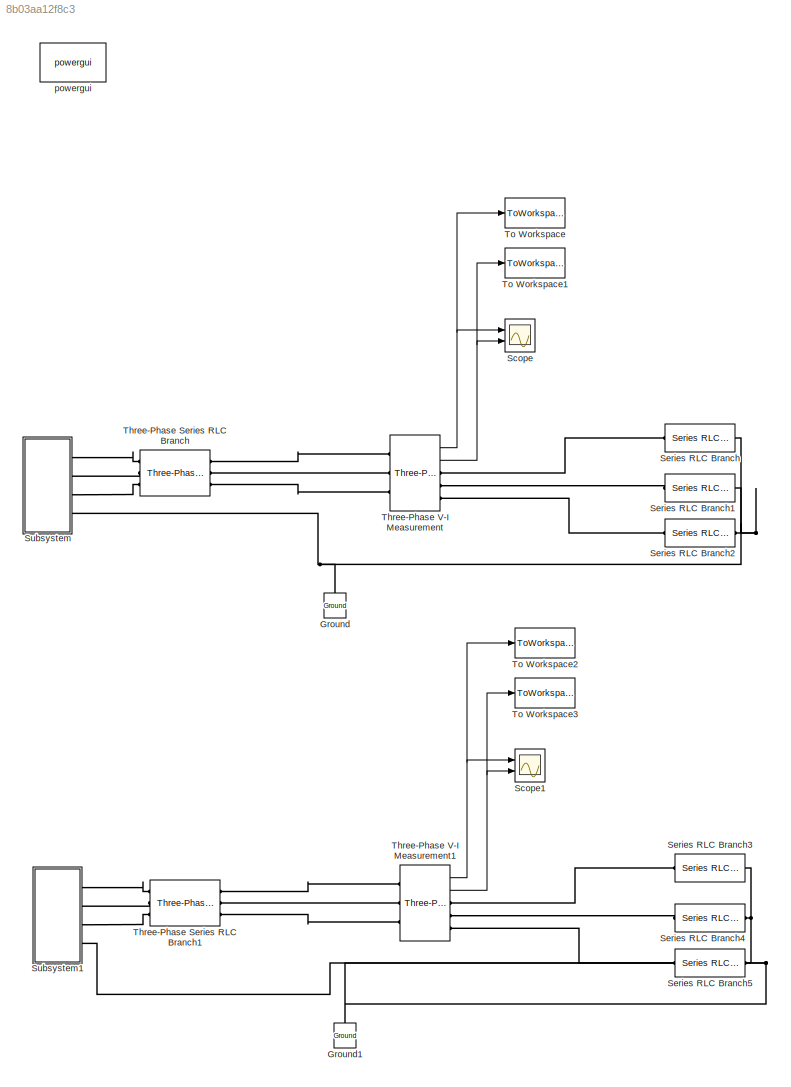
MODEL slx_8b03aa12f8c3
KIND model
BLOCK [Reference] Ground  REF=powerlib/Elements/Ground
  LConnTagsString = a
  Ports = [0, 0, 0, 0, 0, 1]
  SourceBlock = powerlib/Elements/Ground
  SourceType = Ground
BLOCK [Reference] Ground1  REF=powerlib/Elements/Ground
  LConnTagsString = a
  Ports = [0, 0, 0, 0, 0, 1]
  SourceBlock = powerlib/Elements/Ground
  SourceType = Ground
BLOCK [Scope] Scope
  Floating = off
  LimitDataPoints = off
  NumInputPorts = 2
  Ports = [2]
  ShowLegends = off
  YMax = 250~17.5
  YMin = -250~-17.5
  ZoomMode = xonly
BLOCK [Scope] Scope1
  Floating = off
  LimitDataPoints = off
  NumInputPorts = 2
  Ports = [2]
  SaveName = ScopeData1
  ShowLegends = off
  YMax = 250~17.5
  YMin = -250~-17.5
  ZoomMode = xonly
BLOCK [Reference] Series RLC Branch  REF=powerlib/Elements/Series RLC Branch
  BranchType = C
  Capacitance = 10e-6
  Inductance = 1e-3
  InitialCurrent = 0
  InitialVoltage = 0
  LConnTagsString = __new0
  Measurements = None
  Ports = [0, 0, 0, 0, 0, 1, 1]
  RConnTagsString = __new0
  Resistance = 1
  SetiL0 = off
  Setx0 = off
  SourceBlock = powerlib/Elements/Series RLC Branch
  SourceType = Series RLC Branch
BLOCK [Reference] Series RLC Branch1  REF=powerlib/Elements/Series RLC Branch
  BranchType = C
  Capacitance = 10e-6
  Inductance = 1e-3
  InitialCurrent = 0
  InitialVoltage = 0
  LConnTagsString = __new0
  Measurements = None
  Ports = [0, 0, 0, 0, 0, 1, 1]
  RConnTagsString = __new0
  Resistance = 1
  SetiL0 = off
  Setx0 = off
  SourceBlock = powerlib/Elements/Series RLC Branch
  SourceType = Series RLC Branch
BLOCK [Reference] Series RLC Branch2  REF=powerlib/Elements/Series RLC Branch
  BranchType = C
  Capacitance = 10e-6
  Inductance = 1e-3
  InitialCurrent = 0
  InitialVoltage = 0
  LConnTagsString = __new0
  Measurements = None
  Ports = [0, 0, 0, 0, 0, 1, 1]
  RConnTagsString = __new0
  Resistance = 1
  SetiL0 = off
  Setx0 = off
  SourceBlock = powerlib/Elements/Series RLC Branch
  SourceType = Series RLC Branch
BLOCK [Reference] Series RLC Branch3  REF=powerlib/Elements/Series RLC Branch
  BranchType = C
  Capacitance = 30e-6
  Inductance = 1e-3
  InitialCurrent = 0
  InitialVoltage = 0
  LConnTagsString = __new0
  Measurements = None
  Ports = [0, 0, 0, 0, 0, 1, 1]
  RConnTagsString = __new0
  Resistance = 1
  SetiL0 = off
  Setx0 = off
  SourceBlock = powerlib/Elements/Series RLC Branch
  SourceType = Series RLC Branch
BLOCK [Reference] Series RLC Branch4  REF=powerlib/Elements/Series RLC Branch
  BranchType = C
  Capacitance = 10e-6
  Inductance = 1e-3
  InitialCurrent = 0
  InitialVoltage = 0
  LConnTagsString = __new0
  Measurements = None
  Ports = [0, 0, 0, 0, 0, 1, 1]
  RConnTagsString = __new0
  Resistance = 1
  SetiL0 = off
  Setx0 = off
  SourceBlock = powerlib/Elements/Series RLC Branch
  SourceType = Series RLC Branch
BLOCK [Reference] Series RLC Branch5  REF=powerlib/Elements/Series RLC Branch
  BranchType = C
  Capacitance = 10e-6
  Inductance = 1e-3
  InitialCurrent = 0
  InitialVoltage = 0
  LConnTagsString = __new0
  Measurements = None
  Ports = [0, 0, 0, 0, 0, 1, 1]
  RConnTagsString = __new0
  Resistance = 1
  SetiL0 = off
  Setx0 = off
  SourceBlock = powerlib/Elements/Series RLC Branch
  SourceType = Series RLC Branch
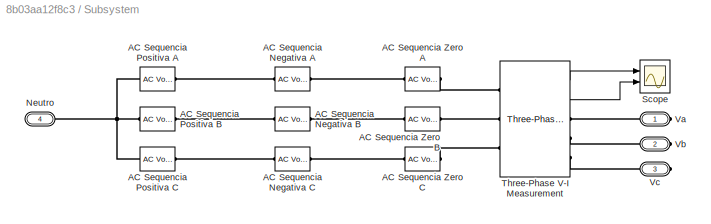
BLOCK [SubSystem] Subsystem
  Ports = [0, 0, 0, 0, 0, 0, 4]
  RequestExecContextInheritance = off
BLOCK [Reference] Subsystem/AC Sequencia Negativa A  REF=powerlib/Electrical
Sources/AC Voltage Source
  Amplitude = Vn
  Frequency = f
  Measurements = None
  Phase = 0+phin
  Ports = [0, 0, 0, 0, 0, 1, 1]
  SampleTime = 0
  SourceBlock = powerlib/Electrical\nSources/AC Voltage Source
  SourceType = AC Voltage Source
BLOCK [Reference] Subsystem/AC Sequencia Negativa B  REF=powerlib/Electrical
Sources/AC Voltage Source
  Amplitude = Vn
  Frequency = f
  Measurements = None
  Phase = 120+phin
  Ports = [0, 0, 0, 0, 0, 1, 1]
  SampleTime = 0
  SourceBlock = powerlib/Electrical\nSources/AC Voltage Source
  SourceType = AC Voltage Source
BLOCK [Reference] Subsystem/AC Sequencia Negativa C  REF=powerlib/Electrical
Sources/AC Voltage Source
  Amplitude = Vn
  Frequency = f
  Measurements = None
  Phase = -120+phin
  Ports = [0, 0, 0, 0, 0, 1, 1]
  SampleTime = 0
  SourceBlock = powerlib/Electrical\nSources/AC Voltage Source
  SourceType = AC Voltage Source
BLOCK [Reference] Subsystem/AC Sequencia Positiva A  REF=powerlib/Electrical
Sources/AC Voltage Source
  Amplitude = Vp
  Frequency = f
  Measurements = None
  Phase = 0
  Ports = [0, 0, 0, 0, 0, 1, 1]
  SampleTime = 0
  SourceBlock = powerlib/Electrical\nSources/AC Voltage Source
  SourceType = AC Voltage Source
BLOCK [Reference] Subsystem/AC Sequencia Positiva B  REF=powerlib/Electrical
Sources/AC Voltage Source
  Amplitude = Vp
  Frequency = f
  Measurements = None
  Phase = -120
  Ports = [0, 0, 0, 0, 0, 1, 1]
  SampleTime = 0
  SourceBlock = powerlib/Electrical\nSources/AC Voltage Source
  SourceType = AC Voltage Source
BLOCK [Reference] Subsystem/AC Sequencia Positiva C  REF=powerlib/Electrical
Sources/AC Voltage Source
  Amplitude = Vp
  Frequency = f
  Measurements = None
  Phase = +120
  Ports = [0, 0, 0, 0, 0, 1, 1]
  SampleTime = 0
  SourceBlock = powerlib/Electrical\nSources/AC Voltage Source
  SourceType = AC Voltage Source
BLOCK [Reference] Subsystem/AC Sequencia Zero A  REF=powerlib/Electrical
Sources/AC Voltage Source
  Amplitude = Vz
  Frequency = f
  Measurements = None
  Phase = 0+phi0
  Ports = [0, 0, 0, 0, 0, 1, 1]
  SampleTime = 0
  SourceBlock = powerlib/Electrical\nSources/AC Voltage Source
  SourceType = AC Voltage Source
BLOCK [Reference] Subsystem/AC Sequencia Zero B  REF=powerlib/Electrical
Sources/AC Voltage Source
  Amplitude = Vz
  Frequency = f
  Measurements = None
  Phase = 0+phi0
  Ports = [0, 0, 0, 0, 0, 1, 1]
  SampleTime = 0
  SourceBlock = powerlib/Electrical\nSources/AC Voltage Source
  SourceType = AC Voltage Source
BLOCK [Reference] Subsystem/AC Sequencia Zero C  REF=powerlib/Electrical
Sources/AC Voltage Source
  Amplitude = Vz
  Frequency = f
  Measurements = None
  Phase = 0+phi0
  Ports = [0, 0, 0, 0, 0, 1, 1]
  SampleTime = 0
  SourceBlock = powerlib/Electrical\nSources/AC Voltage Source
  SourceType = AC Voltage Source
BLOCK [PMIOPort] Subsystem/Neutro
  Port = 4
  Side = Right
BLOCK [Scope] Subsystem/Scope
  Floating = off
  LimitDataPoints = off
  NumInputPorts = 2
  Ports = [2]
  SaveName = ScopeData14
  ShowLegends = off
  YMax = 6~0.8
  YMin = -6~-0.8
  ZoomMode = xonly
BLOCK [Reference] Subsystem/Three-Phase V-I Measurement  REF=powerlib/Measurements/Three-Phase
V-I Measurement
  CurrentMeasurement = yes
  Ipu = off
  LabelI = Iabc
  LabelV = Vabc
  OutputType = Complex
  PSBequivalent = 0
  Pbase = 100e6
  PhasorSimulation = off
  Ports = [0, 2, 0, 0, 0, 3, 3]
  SetLabelI = off
  SetLabelV = off
  SourceBlock = powerlib/Measurements/Three-Phase\nV-I Measurement
  SourceType = Three-Phase VI Measurement
  Vbase = 500e3
  VoltageMeasurement = phase-to-ground
  Vpu = off
  VpuLL = off
BLOCK [PMIOPort] Subsystem/Va
  Port = 1
  Side = Right
BLOCK [PMIOPort] Subsystem/Vb
  Port = 2
  Side = Right
BLOCK [PMIOPort] Subsystem/Vc
  Port = 3
  Side = Right
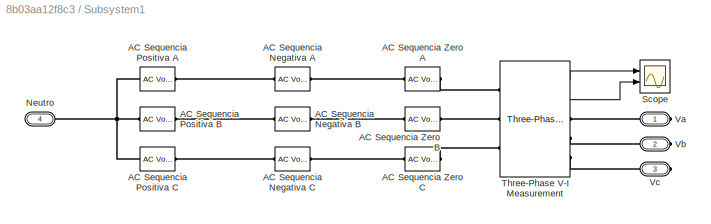
BLOCK [SubSystem] Subsystem1
  Ports = [0, 0, 0, 0, 0, 0, 4]
  RequestExecContextInheritance = off
BLOCK [Reference] Subsystem1/AC Sequencia Negativa A  REF=powerlib/Electrical
Sources/AC Voltage Source
  Amplitude = Vn
  Frequency = f
  Measurements = None
  Phase = 0+phin
  Ports = [0, 0, 0, 0, 0, 1, 1]
  SampleTime = 0
  SourceBlock = powerlib/Electrical\nSources/AC Voltage Source
  SourceType = AC Voltage Source
BLOCK [Reference] Subsystem1/AC Sequencia Negativa B  REF=powerlib/Electrical
Sources/AC Voltage Source
  Amplitude = Vn
  Frequency = f
  Measurements = None
  Phase = 120+phin
  Ports = [0, 0, 0, 0, 0, 1, 1]
  SampleTime = 0
  SourceBlock = powerlib/Electrical\nSources/AC Voltage Source
  SourceType = AC Voltage Source
BLOCK [Reference] Subsystem1/AC Sequencia Negativa C  REF=powerlib/Electrical
Sources/AC Voltage Source
  Amplitude = Vn
  Frequency = f
  Measurements = None
  Phase = -120+phin
  Ports = [0, 0, 0, 0, 0, 1, 1]
  SampleTime = 0
  SourceBlock = powerlib/Electrical\nSources/AC Voltage Source
  SourceType = AC Voltage Source
BLOCK [Reference] Subsystem1/AC Sequencia Positiva A  REF=powerlib/Electrical
Sources/AC Voltage Source
  Amplitude = Vp
  Frequency = f
  Measurements = None
  Phase = 0
  Ports = [0, 0, 0, 0, 0, 1, 1]
  SampleTime = 0
  SourceBlock = powerlib/Electrical\nSources/AC Voltage Source
  SourceType = AC Voltage Source
BLOCK [Reference] Subsystem1/AC Sequencia Positiva B  REF=powerlib/Electrical
Sources/AC Voltage Source
  Amplitude = Vp
  Frequency = f
  Measurements = None
  Phase = -120
  Ports = [0, 0, 0, 0, 0, 1, 1]
  SampleTime = 0
  SourceBlock = powerlib/Electrical\nSources/AC Voltage Source
  SourceType = AC Voltage Source
BLOCK [Reference] Subsystem1/AC Sequencia Positiva C  REF=powerlib/Electrical
Sources/AC Voltage Source
  Amplitude = Vp
  Frequency = f
  Measurements = None
  Phase = +120
  Ports = [0, 0, 0, 0, 0, 1, 1]
  SampleTime = 0
  SourceBlock = powerlib/Electrical\nSources/AC Voltage Source
  SourceType = AC Voltage Source
BLOCK [Reference] Subsystem1/AC Sequencia Zero A  REF=powerlib/Electrical
Sources/AC Voltage Source
  Amplitude = Vz
  Frequency = f
  Measurements = None
  Phase = 0+phi0
  Ports = [0, 0, 0, 0, 0, 1, 1]
  SampleTime = 0
  SourceBlock = powerlib/Electrical\nSources/AC Voltage Source
  SourceType = AC Voltage Source
BLOCK [Reference] Subsystem1/AC Sequencia Zero B  REF=powerlib/Electrical
Sources/AC Voltage Source
  Amplitude = Vz
  Frequency = f
  Measurements = None
  Phase = 0+phi0
  Ports = [0, 0, 0, 0, 0, 1, 1]
  SampleTime = 0
  SourceBlock = powerlib/Electrical\nSources/AC Voltage Source
  SourceType = AC Voltage Source
BLOCK [Reference] Subsystem1/AC Sequencia Zero C  REF=powerlib/Electrical
Sources/AC Voltage Source
  Amplitude = Vz
  Frequency = f
  Measurements = None
  Phase = 0+phi0
  Ports = [0, 0, 0, 0, 0, 1, 1]
  SampleTime = 0
  SourceBlock = powerlib/Electrical\nSources/AC Voltage Source
  SourceType = AC Voltage Source
BLOCK [PMIOPort] Subsystem1/Neutro
  Port = 4
  Side = Right
BLOCK [Scope] Subsystem1/Scope
  Floating = off
  LimitDataPoints = off
  NumInputPorts = 2
  Ports = [2]
  SaveName = ScopeData14
  ShowLegends = off
  YMax = 6~0.8
  YMin = -6~-0.8
  ZoomMode = xonly
BLOCK [Reference] Subsystem1/Three-Phase V-I Measurement  REF=powerlib/Measurements/Three-Phase
V-I Measurement
  CurrentMeasurement = yes
  Ipu = off
  LabelI = Iabc
  LabelV = Vabc
  OutputType = Complex
  PSBequivalent = 0
  Pbase = 100e6
  PhasorSimulation = off
  Ports = [0, 2, 0, 0, 0, 3, 3]
  SetLabelI = off
  SetLabelV = off
  SourceBlock = powerlib/Measurements/Three-Phase\nV-I Measurement
  SourceType = Three-Phase VI Measurement
  Vbase = 500e3
  VoltageMeasurement = phase-to-ground
  Vpu = off
  VpuLL = off
BLOCK [PMIOPort] Subsystem1/Va
  Port = 1
  Side = Right
BLOCK [PMIOPort] Subsystem1/Vb
  Port = 2
  Side = Right
BLOCK [PMIOPort] Subsystem1/Vc
  Port = 3
  Side = Right
BLOCK [Reference] Three-Phase Series RLC Branch  REF=powerlib/Elements/Three-Phase
Series RLC Branch
  AttributesFormatString = \n
  BranchType = R
  Capacitance = 1e-6
  Inductance = eps
  LConnTagsString = A|B|C
  Measurements = None
  Ports = [0, 0, 0, 0, 0, 3, 3]
  RConnTagsString = A|B|C
  Resistance = 1
  SourceBlock = powerlib/Elements/Three-Phase\nSeries RLC Branch
  SourceType = Three-Phase Series RLC Branch
BLOCK [Reference] Three-Phase Series RLC Branch1  REF=powerlib/Elements/Three-Phase
Series RLC Branch
  AttributesFormatString = \n
  BranchType = R
  Capacitance = 1e-6
  Inductance = eps
  LConnTagsString = A|B|C
  Measurements = None
  Ports = [0, 0, 0, 0, 0, 3, 3]
  RConnTagsString = A|B|C
  Resistance = 1
  SourceBlock = powerlib/Elements/Three-Phase\nSeries RLC Branch
  SourceType = Three-Phase Series RLC Branch
BLOCK [Reference] Three-Phase V-I Measurement  REF=powerlib/Measurements/Three-Phase
V-I Measurement
  CurrentMeasurement = yes
  Ipu = off
  LabelI = Iabc
  LabelV = Vabc
  OutputType = Complex
  PSBequivalent = 0
  Pbase = 100e6
  PhasorSimulation = off
  Ports = [0, 2, 0, 0, 0, 3, 3]
  SetLabelI = off
  SetLabelV = off
  SourceBlock = powerlib/Measurements/Three-Phase\nV-I Measurement
  SourceType = Three-Phase VI Measurement
  Vbase = 500e3
  VoltageMeasurement = phase-to-ground
  Vpu = off
  VpuLL = off
BLOCK [Reference] Three-Phase V-I Measurement1  REF=powerlib/Measurements/Three-Phase
V-I Measurement
  CurrentMeasurement = yes
  Ipu = off
  LabelI = Iabc
  LabelV = Vabc
  OutputType = Complex
  PSBequivalent = 0
  Pbase = 100e6
  PhasorSimulation = off
  Ports = [0, 2, 0, 0, 0, 3, 3]
  SetLabelI = off
  SetLabelV = off
  SourceBlock = powerlib/Measurements/Three-Phase\nV-I Measurement
  SourceType = Three-Phase VI Measurement
  Vbase = 500e3
  VoltageMeasurement = phase-to-ground
  Vpu = off
  VpuLL = off
BLOCK [ToWorkspace] To Workspace
  FixptAsFi = on
  MaxDataPoints = inf
  Ports = [1]
  SampleTime = -1
  Save2DSignal = 3-D array (concatenate along third dimension)
  SaveFormat = Structure With Time
  VariableName = Vabc_bal
BLOCK [ToWorkspace] To Workspace1
  FixptAsFi = on
  MaxDataPoints = inf
  Ports = [1]
  SampleTime = -1
  Save2DSignal = 3-D array (concatenate along third dimension)
  SaveFormat = Structure With Time
  VariableName = Iabc_bal
BLOCK [ToWorkspace] To Workspace2
  FixptAsFi = on
  MaxDataPoints = inf
  Ports = [1]
  SampleTime = -1
  Save2DSignal = 3-D array (concatenate along third dimension)
  SaveFormat = Structure With Time
  VariableName = Vabc_desb
BLOCK [ToWorkspace] To Workspace3
  FixptAsFi = on
  MaxDataPoints = inf
  Ports = [1]
  SampleTime = -1
  Save2DSignal = 3-D array (concatenate along third dimension)
  SaveFormat = Structure With Time
  VariableName = Iabc_desb
BLOCK [Reference] powergui  REF=powerlib/powergui
  DisableRonSwitches = off
  DisableSnubberDevices = off
  DisableVfSwitches = off
  DisplayEquations = off
  DisplayStyle = 1
  EnableUseOfTLC = off
  ErrMax = 1e-4
  Frange = [0:2:500]
  FreqAxis = off
  FunctionMessages = off
  HookPort = off
  Interpol = off
  Iterations = 50
  MaxFrequency = 1000
  Pbase = 100e6
  Ports = []
  Priority = 1
  ResistiveCurrentMeasurement = off
  RestoreLinks = warning
  RmsSteady = 1
  SPID = off
  SampleTime = 1e-7
  ShowGrid = off
  SolverType = Tustin
  SourceBlock = powerlib/powergui
  SourceType = PSB option menu block
  StartTime = 0.0
  SwTol = 0
  Ts = 100
  UnitsV = kV
  UnitsW = MW
  UserDataPersistent = on
  Xlog = on
  Ylog = off
  ZoomFFT = off
  cycles = 1
  display = off
  echomessages = off
  frequency = 60
  frequencyindice = 400
  frequencyindicesteady = 1
  fundamental = 60
  methode = off
  save = off
  structure = 0
  variable = ZData
  x0status = blocks
LINE Subsystem/Three-Phase V-I Measurement:1 -> Subsystem/Scope:1
LINE Subsystem/Three-Phase V-I Measurement:2 -> Subsystem/Scope:2
LINE Subsystem1/Three-Phase V-I Measurement:1 -> Subsystem1/Scope:1
LINE Subsystem1/Three-Phase V-I Measurement:2 -> Subsystem1/Scope:2
NET Three-Phase V-I Measurement1:1 -> Scope1:1, To Workspace2:1
NET Three-Phase V-I Measurement1:2 -> Scope1:2, To Workspace3:1
NET Three-Phase V-I Measurement:1 -> Scope:1, To Workspace:1
NET Three-Phase V-I Measurement:2 -> Scope:2, To Workspace1:1
PNET net1: Ground1:LConn1 -- Series RLC Branch3:RConn1 -- Series RLC Branch4:RConn1 -- Series RLC Branch5:RConn1 -- Subsystem1:RConn4
PNET net2: Ground:LConn1 -- Series RLC Branch1:RConn1 -- Series RLC Branch2:RConn1 -- Series RLC Branch:RConn1 -- Subsystem:RConn4
PLINE Series RLC Branch1:LConn1 -- Three-Phase V-I Measurement:RConn2
PLINE Series RLC Branch2:LConn1 -- Three-Phase V-I Measurement:RConn3
PLINE Series RLC Branch3:LConn1 -- Three-Phase V-I Measurement1:RConn1
PLINE Series RLC Branch4:LConn1 -- Three-Phase V-I Measurement1:RConn2
PLINE Series RLC Branch5:LConn1 -- Three-Phase V-I Measurement1:RConn3
PLINE Series RLC Branch:LConn1 -- Three-Phase V-I Measurement:RConn1
PLINE Subsystem/AC Sequencia Negativa A:LConn1 -- Subsystem/AC Sequencia Positiva A:RConn1
PLINE Subsystem/AC Sequencia Negativa A:RConn1 -- Subsystem/AC Sequencia Zero A:LConn1
PLINE Subsystem/AC Sequencia Negativa B:LConn1 -- Subsystem/AC Sequencia Positiva B:RConn1
PLINE Subsystem/AC Sequencia Negativa B:RConn1 -- Subsystem/AC Sequencia Zero B:LConn1
PLINE Subsystem/AC Sequencia Negativa C:LConn1 -- Subsystem/AC Sequencia Positiva C:RConn1
PLINE Subsystem/AC Sequencia Negativa C:RConn1 -- Subsystem/AC Sequencia Zero C:LConn1
PNET net3: Subsystem/AC Sequencia Positiva A:LConn1 -- Subsystem/AC Sequencia Positiva B:LConn1 -- Subsystem/AC Sequencia Positiva C:LConn1 -- Subsystem/Neutro:RConn1
PLINE Subsystem/AC Sequencia Zero A:RConn1 -- Subsystem/Three-Phase V-I Measurement:LConn1
PLINE Subsystem/AC Sequencia Zero B:RConn1 -- Subsystem/Three-Phase V-I Measurement:LConn2
PLINE Subsystem/AC Sequencia Zero C:RConn1 -- Subsystem/Three-Phase V-I Measurement:LConn3
PLINE Subsystem/Three-Phase V-I Measurement:RConn1 -- Subsystem/Va:RConn1
PLINE Subsystem/Three-Phase V-I Measurement:RConn2 -- Subsystem/Vb:RConn1
PLINE Subsystem/Three-Phase V-I Measurement:RConn3 -- Subsystem/Vc:RConn1
PLINE Subsystem1/AC Sequencia Negativa A:LConn1 -- Subsystem1/AC Sequencia Positiva A:RConn1
PLINE Subsystem1/AC Sequencia Negativa A:RConn1 -- Subsystem1/AC Sequencia Zero A:LConn1
PLINE Subsystem1/AC Sequencia Negativa B:LConn1 -- Subsystem1/AC Sequencia Positiva B:RConn1
PLINE Subsystem1/AC Sequencia Negativa B:RConn1 -- Subsystem1/AC Sequencia Zero B:LConn1
PLINE Subsystem1/AC Sequencia Negativa C:LConn1 -- Subsystem1/AC Sequencia Positiva C:RConn1
PLINE Subsystem1/AC Sequencia Negativa C:RConn1 -- Subsystem1/AC Sequencia Zero C:LConn1
PNET net4: Subsystem1/AC Sequencia Positiva A:LConn1 -- Subsystem1/AC Sequencia Positiva B:LConn1 -- Subsystem1/AC Sequencia Positiva C:LConn1 -- Subsystem1/Neutro:RConn1
PLINE Subsystem1/AC Sequencia Zero A:RConn1 -- Subsystem1/Three-Phase V-I Measurement:LConn1
PLINE Subsystem1/AC Sequencia Zero B:RConn1 -- Subsystem1/Three-Phase V-I Measurement:LConn2
PLINE Subsystem1/AC Sequencia Zero C:RConn1 -- Subsystem1/Three-Phase V-I Measurement:LConn3
PLINE Subsystem1/Three-Phase V-I Measurement:RConn1 -- Subsystem1/Va:RConn1
PLINE Subsystem1/Three-Phase V-I Measurement:RConn2 -- Subsystem1/Vb:RConn1
PLINE Subsystem1/Three-Phase V-I Measurement:RConn3 -- Subsystem1/Vc:RConn1
PLINE Subsystem1:RConn1 -- Three-Phase Series RLC Branch1:LConn1
PLINE Subsystem1:RConn2 -- Three-Phase Series RLC Branch1:LConn2
PLINE Subsystem1:RConn3 -- Three-Phase Series RLC Branch1:LConn3
PLINE Subsystem:RConn1 -- Three-Phase Series RLC Branch:LConn1
PLINE Subsystem:RConn2 -- Three-Phase Series RLC Branch:LConn2
PLINE Subsystem:RConn3 -- Three-Phase Series RLC Branch:LConn3
PLINE Three-Phase Series RLC Branch1:RConn1 -- Three-Phase V-I Measurement1:LConn1
PLINE Three-Phase Series RLC Branch1:RConn2 -- Three-Phase V-I Measurement1:LConn2
PLINE Three-Phase Series RLC Branch1:RConn3 -- Three-Phase V-I Measurement1:LConn3
PLINE Three-Phase Series RLC Branch:RConn1 -- Three-Phase V-I Measurement:LConn1
PLINE Three-Phase Series RLC Branch:RConn2 -- Three-Phase V-I Measurement:LConn2
PLINE Three-Phase Series RLC Branch:RConn3 -- Three-Phase V-I Measurement:LConn3
note: NET lines group one-source signal fan-out (src -> all destinations, sorted); 1:1 wires keep LINE; PNET lines group multi-terminal physical nets as a canonical sorted terminal list (undirected conserving connections); 2-terminal nets keep the pairwise PLINE form
